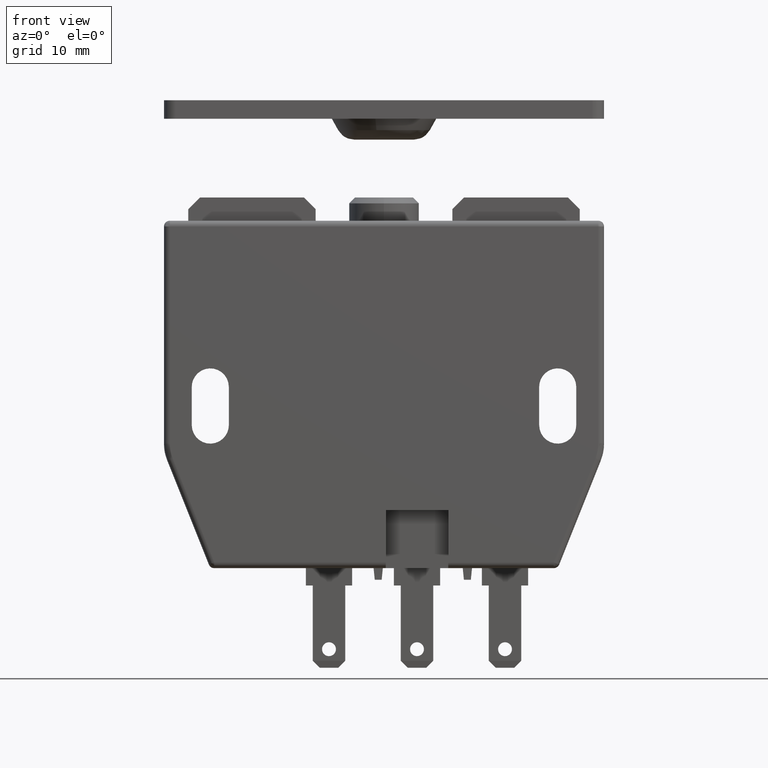
[diagram: clean part render]
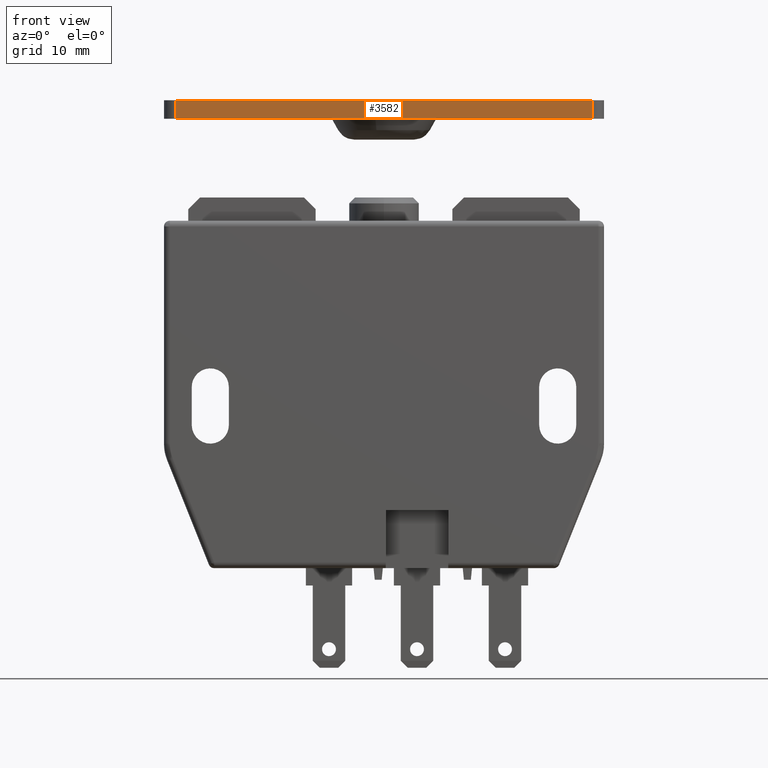
[diagram: same view with one face highlighted and labeled with its STEP entity id]
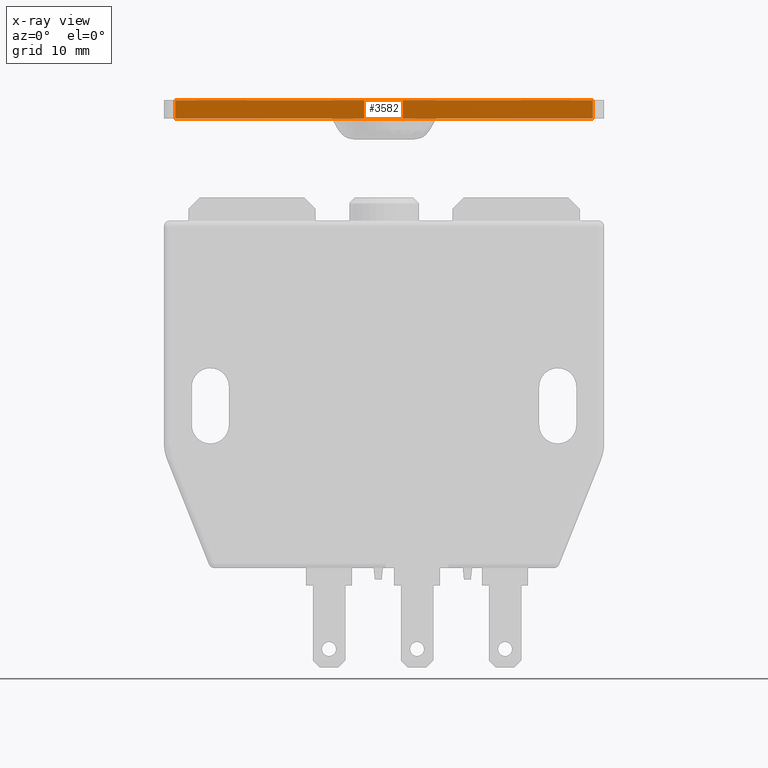
[diagram: x-ray of the same camera — body ghosted, the highlighted face saturated]
A machine part, front view. The second image highlights one B-rep face of the part: STEP entity #3582.
The next image is the same camera in x-ray: the body ghosted, the highlighted face saturated — about 0% of this face is hidden behind the body in this view.
In plain terms, the highlighted face is a freeform B-spline surface patch.
Its self-contained STEP definition (entity closure, byte-faithful):
#3460=CARTESIAN_POINT('',(-18.000000000000849,-6.000000000130880,8.399999999999960));
#3461=VERTEX_POINT('',#3460);
#3475=CARTESIAN_POINT('',(17.999999999998501,-6.000000000130880,8.399999999999960));
#3476=VERTEX_POINT('',#3475);
#3477=CARTESIAN_POINT('',(-18.000000000000849,-6.000000000130880,8.399999999999960));
#3478=CARTESIAN_POINT('',(17.999999999998501,-6.000000000130880,8.399999999999960));
#3479=QUASI_UNIFORM_CURVE('',1,(#3477,#3478),.UNSPECIFIED.,.F.,.U.);
#3480=EDGE_CURVE('',#3461,#3476,#3479,.T.);
#3531=CARTESIAN_POINT('',(17.999999999998501,-6.000000000130880,6.799999999999915));
#3532=VERTEX_POINT('',#3531);
#3533=CARTESIAN_POINT('',(17.999999999998501,-6.000000000130880,6.799999999999915));
#3534=CARTESIAN_POINT('',(17.999999999998501,-6.000000000130880,8.399999999999960));
#3535=QUASI_UNIFORM_CURVE('',1,(#3533,#3534),.UNSPECIFIED.,.F.,.U.);
#3536=EDGE_CURVE('',#3532,#3476,#3535,.T.);
#3561=CARTESIAN_POINT('',(-19.798199930225831,-6.000000000130880,8.479919996898852));
#3562=CARTESIAN_POINT('',(-19.798199930225831,-6.000000000130880,6.720079960185679));
#3563=CARTESIAN_POINT('',(19.798200895818731,-6.000000000130880,8.479919996898852));
#3564=CARTESIAN_POINT('',(19.798200895818731,-6.000000000130880,6.720079960185679));
#3565=B_SPLINE_SURFACE_WITH_KNOTS('',1,1,((#3561,#3563),(#3562,#3564)),.UNSPECIFIED.,.F.,.F.,.U.,(2,2),(2,2),(0.041708334948495,0.958291687403247),(0.0,39.596400826044572),.UNSPECIFIED.);
#3566=ORIENTED_EDGE('',*,*,#3480,.F.);
#3567=CARTESIAN_POINT('',(-18.000000000000849,-6.000000000130880,6.799999999999915));
#3568=VERTEX_POINT('',#3567);
#3569=CARTESIAN_POINT('',(-18.000000000000849,-6.000000000130880,6.799999999999915));
#3570=CARTESIAN_POINT('',(-18.000000000000849,-6.000000000130880,8.399999999999960));
#3571=QUASI_UNIFORM_CURVE('',1,(#3569,#3570),.UNSPECIFIED.,.F.,.U.);
#3572=EDGE_CURVE('',#3568,#3461,#3571,.T.);
#3573=ORIENTED_EDGE('',*,*,#3572,.F.);
#3574=CARTESIAN_POINT('',(-18.000000000000849,-6.000000000130880,6.799999999999915));
#3575=CARTESIAN_POINT('',(17.999999999998501,-6.000000000130880,6.799999999999915));
#3576=QUASI_UNIFORM_CURVE('',1,(#3574,#3575),.UNSPECIFIED.,.F.,.U.);
#3577=EDGE_CURVE('',#3568,#3532,#3576,.T.);
#3578=ORIENTED_EDGE('',*,*,#3577,.T.);
#3579=ORIENTED_EDGE('',*,*,#3536,.T.);
#3580=EDGE_LOOP('',(#3566,#3573,#3578,#3579));
#3581=FACE_OUTER_BOUND('',#3580,.T.);
#3582=ADVANCED_FACE('',(#3581),#3565,.T.);